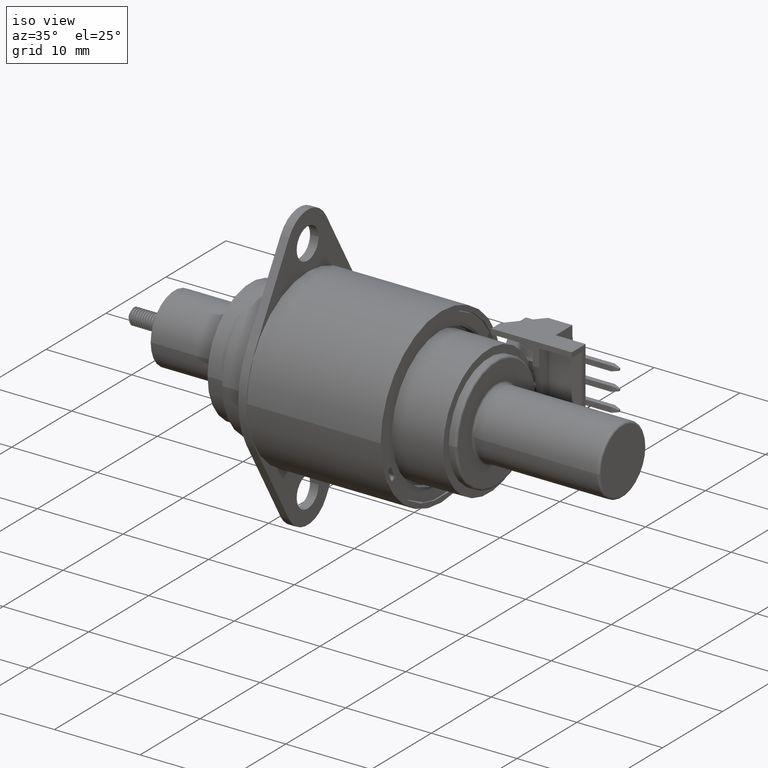
[diagram: clean part render]
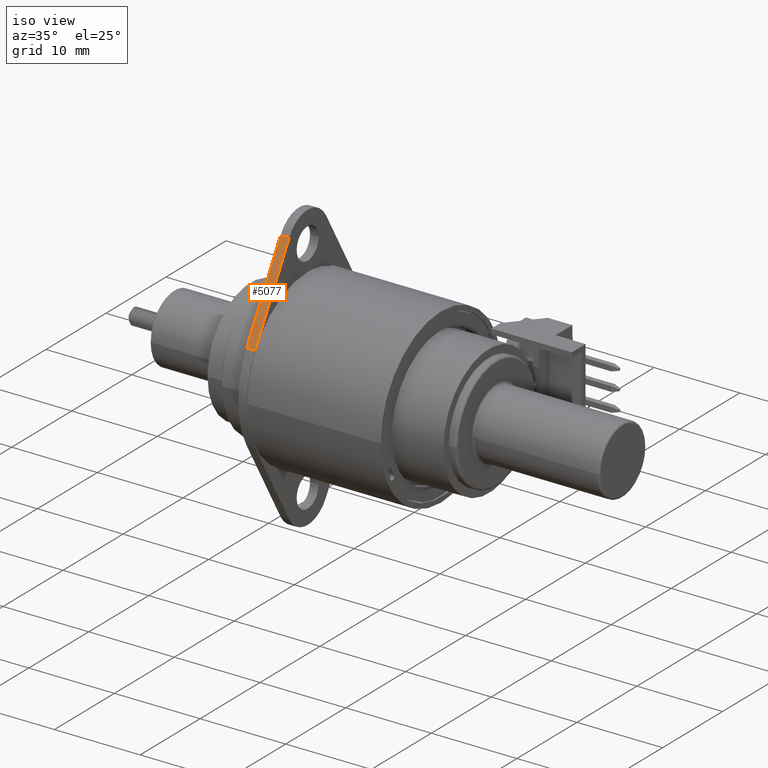
[diagram: same view with one face highlighted and labeled with its STEP entity id]
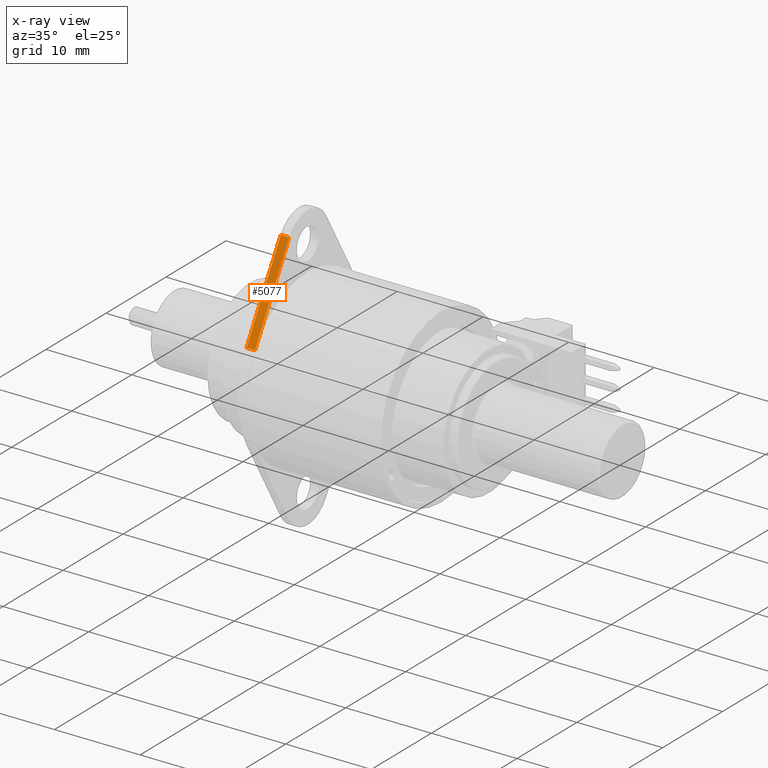
[diagram: x-ray of the same camera — body ghosted, the highlighted face saturated]
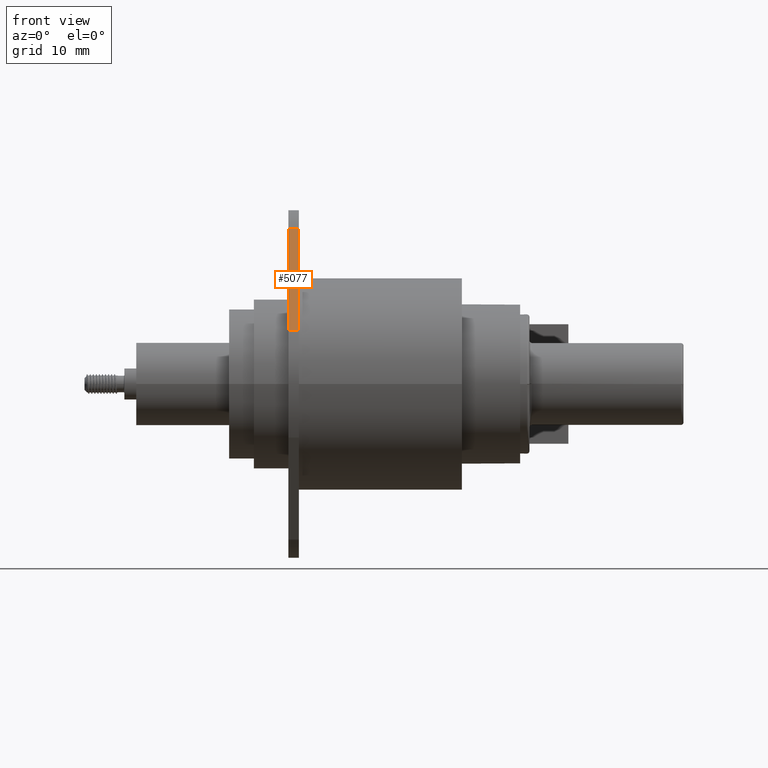
[diagram: same view with one face highlighted and labeled with its STEP entity id]
A machine part, iso view. The second image highlights one B-rep face of the part: STEP entity #5077.
The next image is the same camera in x-ray: the body ghosted, the highlighted face saturated — about 0% of this face is hidden behind the body in this view.
A second angle (front view) of the same face is appended — the face is thin or edge-on in the first view.
In plain terms, the highlighted planar face has unit normal (0, -0.8632, 0.5049).
Its self-contained STEP definition (entity closure, byte-faithful):
#4751=DIRECTION('',(5.048543689321E-1,8.632045332192E-1,0.E0));
#4752=VECTOR('',#4751,4.445503346072E-1);
#4753=CARTESIAN_POINT('',(1.208486346507E-1,-5.856796116505E-1,0.E0));
#4754=LINE('',#4753,#4752);
#4802=DIRECTION('',(2.111959789230E-12,3.047477667848E-12,1.E0));
#4803=VECTOR('',#4802,3.94E-2);
#4804=CARTESIAN_POINT('',(3.452818132873E-1,-2.019417475735E-1,0.E0));
#4805=LINE('',#4804,#4803);
#4814=DIRECTION('',(-5.762451993296E-13,-4.254915652751E-13,-1.E0));
#4815=VECTOR('',#4814,3.94E-2);
#4816=CARTESIAN_POINT('',(1.208486346507E-1,-5.856796116505E-1,3.94E-2));
#4817=LINE('',#4816,#4815);
#4849=DIRECTION('',(-5.048543689321E-1,-8.632045332192E-1,0.E0));
#4850=VECTOR('',#4849,4.445503346073E-1);
#4851=CARTESIAN_POINT('',(3.452818132874E-1,-2.019417475734E-1,3.94E-2));
#4852=LINE('',#4851,#4850);
#4918=CARTESIAN_POINT('',(1.208486346506E-1,-5.856796116506E-1,0.E0));
#4919=VERTEX_POINT('',#4918);
#4920=CARTESIAN_POINT('',(3.452818132873E-1,-2.019417475735E-1,0.E0));
#4921=VERTEX_POINT('',#4920);
#4944=CARTESIAN_POINT('',(3.452818132874E-1,-2.019417475734E-1,3.94E-2));
#4945=VERTEX_POINT('',#4944);
#4948=CARTESIAN_POINT('',(1.208486346507E-1,-5.856796116505E-1,3.94E-2));
#4949=VERTEX_POINT('',#4948);
#5064=CARTESIAN_POINT('',(1.208486346507E-1,-5.856796116505E-1,0.E0));
#5065=DIRECTION('',(8.632045332192E-1,-5.048543689321E-1,0.E0));
#5066=DIRECTION('',(5.048543689321E-1,8.632045332192E-1,0.E0));
#5067=AXIS2_PLACEMENT_3D('',#5064,#5065,#5066);
#5068=PLANE('',#5067);
#5069=ORIENTED_EDGE('',*,*,#4979,.F.);
#5071=ORIENTED_EDGE('',*,*,#5070,.F.);
#5073=ORIENTED_EDGE('',*,*,#5072,.F.);
#5074=ORIENTED_EDGE('',*,*,#5054,.F.);
#5075=EDGE_LOOP('',(#5069,#5071,#5073,#5074));
#5076=FACE_OUTER_BOUND('',#5075,.F.);
#5077=ADVANCED_FACE('',(#5076),#5068,.T.);
#4979=EDGE_CURVE('',#4919,#4921,#4754,.T.);
#5054=EDGE_CURVE('',#4921,#4945,#4805,.T.);
#5070=EDGE_CURVE('',#4949,#4919,#4817,.T.);
#5072=EDGE_CURVE('',#4945,#4949,#4852,.T.);